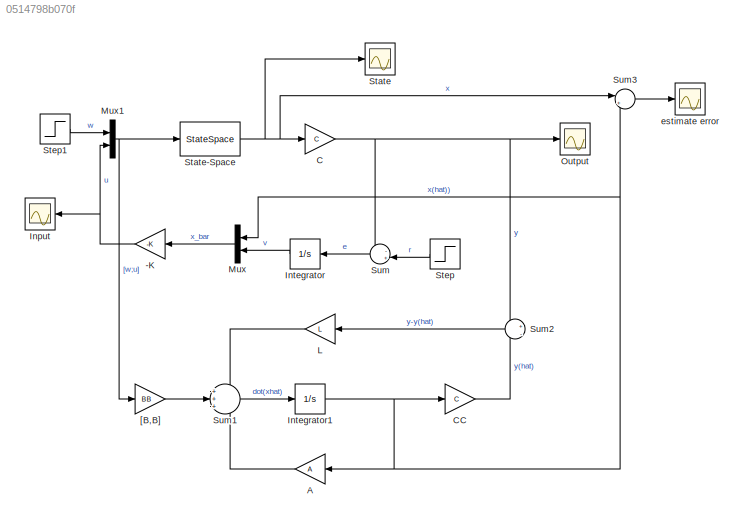
MODEL slx_0514798b070f
KIND model
CONFIG AbsTol = auto
CONFIG EnableMultiTasking = off
CONFIG FixedStep = auto
CONFIG MaxStep = auto
CONFIG MinStep = auto
CONFIG RelTol = 1e-3
CONFIG SampleTimeConstraint = Unconstrained
CONFIG SolverName = VariableStepAuto
CONFIG StartTime = 0.0
CONFIG StopTime = 30
BLOCK [Gain] -K
  Gain = -K
  Multiplication = Matrix(K*u)
BLOCK [Gain] A
  Gain = A
  Multiplication = Matrix(K*u)
BLOCK [Gain] C
  Gain = C
  Multiplication = Matrix(K*u)
BLOCK [Gain] CC
  Gain = C
  Multiplication = Matrix(K*u)
BLOCK [Scope] Input
  Floating = off
  NameLocation = top
  NumInputPorts = 1
  Ports = [1]
  ScopeSpecificationString = Simulink.scopes.TimeScopeBlockCfg('CurrentConfiguration', extmgr.ConfigurationSet(extmgr.Configuration('Core','General UI',true),extmgr.Configuration('Core','Source UI',true),extmgr.Configuration('Sources','WiredSimulink',true,'DataLoggingVariableName','ScopeData1'),extmgr.Configuration('Visuals','Time Domain',true,'SerializedDisplays',{struct('MinYLimReal','-362.93788','MaxYLimReal','358.76412','...<+1492ch>
BLOCK [Integrator] Integrator
  NameLocation = top
  Ports = [1, 1]
BLOCK [Integrator] Integrator1
  Ports = [1, 1]
BLOCK [Gain] L
  Gain = L
  Multiplication = Matrix(K*u)
  NameLocation = top
BLOCK [Mux] Mux
  DisplayOption = bar
  Inputs = 2
  NameLocation = top
  Ports = [2, 1]
BLOCK [Mux] Mux1
  DisplayOption = bar
  Inputs = 2
  Ports = [2, 1]
BLOCK [Scope] Output
  Floating = off
  NumInputPorts = 1
  Ports = [1]
  ScopeSpecificationString = Simulink.scopes.TimeScopeBlockCfg('CurrentConfiguration', extmgr.ConfigurationSet(extmgr.Configuration('Core','General UI',true),extmgr.Configuration('Core','Source UI',true),extmgr.Configuration('Sources','WiredSimulink',true),extmgr.Configuration('Visuals','Time Domain',true,'SerializedDisplays',{struct('MinYLimReal','-18.79536','MaxYLimReal','169.15822','YLabelReal','','MinYLimMag','0.00000','M...<+1496ch>
BLOCK [Scope] State
  Floating = off
  NumInputPorts = 1
  Ports = [1]
  ScopeSpecificationString = Simulink.scopes.TimeScopeBlockCfg('CurrentConfiguration', extmgr.ConfigurationSet(extmgr.Configuration('Core','General UI',true),extmgr.Configuration('Core','Source UI',true),extmgr.Configuration('Sources','WiredSimulink',true,'DataLoggingVariableName','ScopeData2'),extmgr.Configuration('Visuals','Time Domain',true,'SerializedDisplays',{struct('MinYLimReal','-609.24538','MaxYLimReal','359.48106','...<+1421ch>
BLOCK [StateSpace] State-Space
  A = A
  B = BB
  C = eye(3)
  D = zeros(3,4)
  InitialCondition = x0
  Ports = [1, 1]
BLOCK [Step] Step
  After = [100;150]
  NameLocation = top
  SampleTime = 0
  Time = 0
BLOCK [Step] Step1
  After = [-2;5]
  SampleTime = 0
  Time = 10
BLOCK [Sum] Sum
  Inputs = -+|
  NameLocation = top
  Ports = [2, 1]
BLOCK [Sum] Sum1
  Inputs = +++
  Ports = [3, 1]
BLOCK [Sum] Sum2
  Inputs = +|-
  NameLocation = top
  Ports = [2, 1]
BLOCK [Sum] Sum3
  Inputs = |+-
  Ports = [2, 1]
BLOCK [Gain] [B,B]
  Gain = BB
  Multiplication = Matrix(K*u)
BLOCK [Scope] estimate error
  Floating = off
  NumInputPorts = 1
  Ports = [1]
  ScopeSpecificationString = Simulink.scopes.TimeScopeBlockCfg('CurrentConfiguration', extmgr.ConfigurationSet(extmgr.Configuration('Core','General UI',true),extmgr.Configuration('Core','Source UI',true),extmgr.Configuration('Sources','WiredSimulink',true,'DataLoggingVariableName','ScopeData1'),extmgr.Configuration('Visuals','Time Domain',true,'SerializedDisplays',{struct('MinYLimReal','-1078.0104','MaxYLimReal','465.41122','...<+1802ch>
NET -K:1 -> Input:1, Mux1:2
LINE A:1 -> Sum1:3
NET C:1 -> Output:1, Sum2:1, Sum:1
LINE CC:1 -> Sum2:2
NET Integrator1:1 -> A:1, CC:1, Mux:1, Sum3:2
LINE Integrator:1 -> Mux:2
LINE L:1 -> Sum1:1
NET Mux1:1 -> State-Space:1, [B,B]:1
LINE Mux:1 -> -K:1
NET State-Space:1 -> C:1, State:1, Sum3:1
LINE Step1:1 -> Mux1:1
LINE Step:1 -> Sum:2
LINE Sum1:1 -> Integrator1:1
LINE Sum2:1 -> L:1
LINE Sum3:1 -> estimate error:1
LINE Sum:1 -> Integrator:1
LINE [B,B]:1 -> Sum1:2
note: NET lines group one-source signal fan-out (src -> all destinations, sorted); 1:1 wires keep LINE
